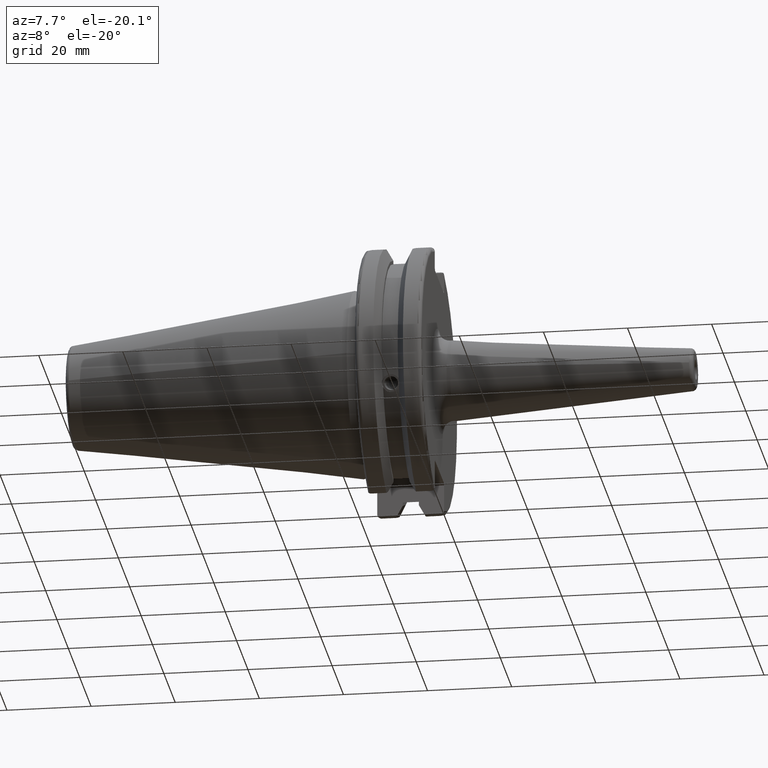
[diagram: clean part render]
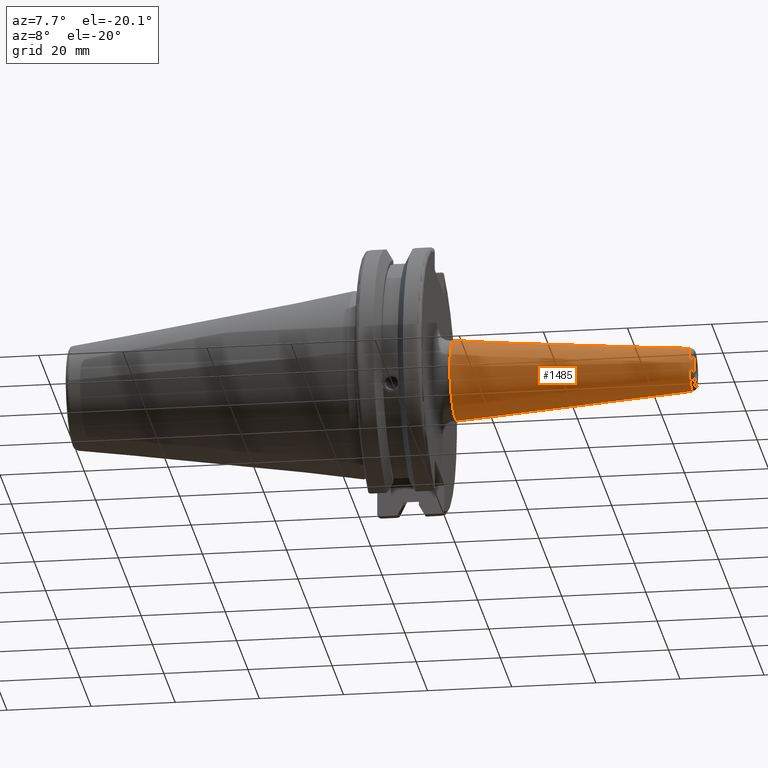
[diagram: same view with one face highlighted and labeled with its STEP entity id]
A machine part, auxiliary view. The second image highlights one B-rep face of the part: STEP entity #1485.
In plain terms, the highlighted conical surface has half-angle 4.5 deg.
Its self-contained STEP definition (entity closure, byte-faithful):
#157=LINE('',#2237,#253);
#253=VECTOR('',#1786,7.25);
#349=CONICAL_SURFACE('',#1599,7.25,0.0785398163397448);
#365=FACE_OUTER_BOUND('',#452,.T.);
#452=EDGE_LOOP('',(#1015,#1016,#1017,#1018,#1019));
#554=CIRCLE('',#1597,5.07252684207492);
#555=CIRCLE('',#1598,5.07252684207492);
#556=CIRCLE('',#1600,9.5);
#626=VERTEX_POINT('',#2230);
#627=VERTEX_POINT('',#2232);
#628=VERTEX_POINT('',#2236);
#779=EDGE_CURVE('',#626,#627,#554,.T.);
#780=EDGE_CURVE('',#627,#626,#555,.T.);
#781=EDGE_CURVE('',#627,#628,#157,.T.);
#782=EDGE_CURVE('',#628,#628,#556,.T.);
#1015=ORIENTED_EDGE('',*,*,#780,.F.);
#1016=ORIENTED_EDGE('',*,*,#781,.T.);
#1017=ORIENTED_EDGE('',*,*,#782,.T.);
#1018=ORIENTED_EDGE('',*,*,#781,.F.);
#1019=ORIENTED_EDGE('',*,*,#779,.F.);
#1485=ADVANCED_FACE('',(#365),#349,.T.);
#1597=AXIS2_PLACEMENT_3D('',#2233,#1780,#1781);
#1598=AXIS2_PLACEMENT_3D('',#2234,#1782,#1783);
#1599=AXIS2_PLACEMENT_3D('',#2235,#1784,#1785);
#1600=AXIS2_PLACEMENT_3D('',#2238,#1787,#1788);
#1780=DIRECTION('center_axis',(1.,0.,0.));
#1781=DIRECTION('ref_axis',(0.,-1.,3.06161699786838E-17));
#1782=DIRECTION('center_axis',(1.,0.,0.));
#1783=DIRECTION('ref_axis',(0.,-1.,3.06161699786838E-17));
#1784=DIRECTION('center_axis',(-1.,0.,0.));
#1785=DIRECTION('ref_axis',(0.,1.,0.));
#1786=DIRECTION('',(-0.996917333733128,-0.078459095727845,-9.60846804471011E-18));
#1787=DIRECTION('center_axis',(1.,0.,0.));
#1788=DIRECTION('ref_axis',(0.,0.,-1.));
#2230=CARTESIAN_POINT('',(79.0784590957279,-6.21205376073608E-16,5.07252684207492));
#2232=CARTESIAN_POINT('',(79.0784590957279,-5.07252684207492,-6.21205376073608E-16));
#2233=CARTESIAN_POINT('Origin',(79.0784590957279,0.,-7.7650672009201E-16));
#2234=CARTESIAN_POINT('Origin',(79.0784590957279,0.,-7.7650672009201E-16));
#2235=CARTESIAN_POINT('Origin',(51.4110393436069,0.,0.));
#2236=CARTESIAN_POINT('',(22.8220786872138,-9.5,-1.16341445918999E-15));
#2237=CARTESIAN_POINT('',(51.4110393436069,-7.25,-8.87868929381831E-16));
#2238=CARTESIAN_POINT('Origin',(22.8220786872138,0.,0.));